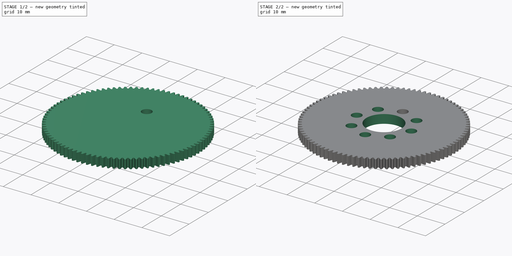
[diagram: build sequence overview — one tinted view per stage of 2, left to right]
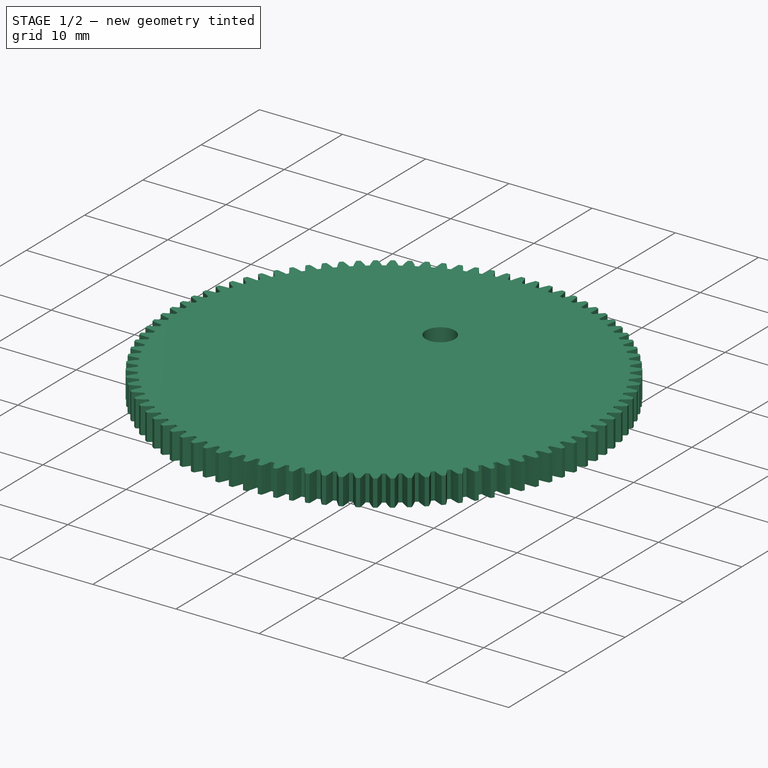
[diagram: stage 1 of 2 — iso view after this stage's code; geometry added in this stage tinted green]
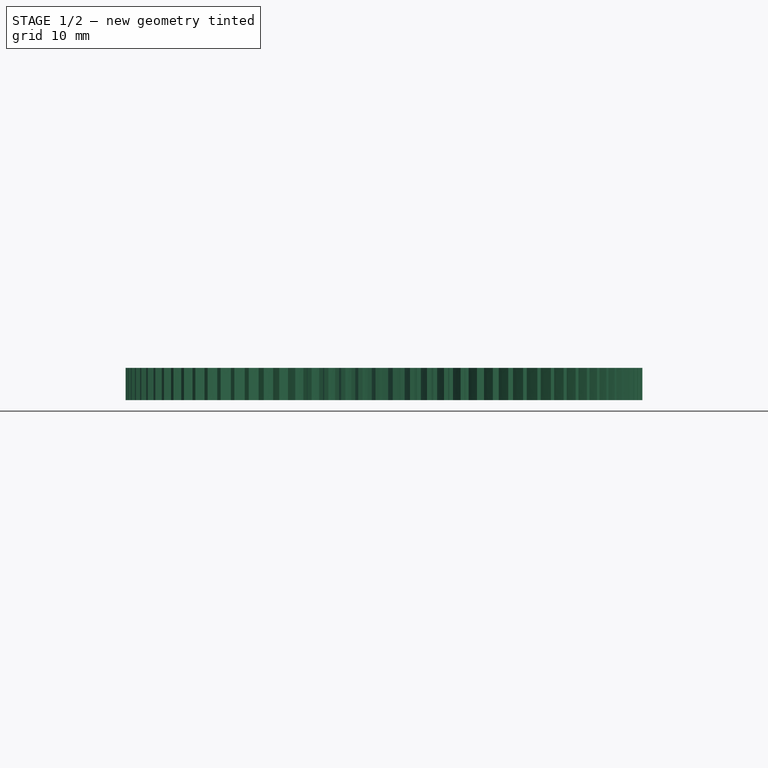
[diagram: stage 1 of 2 — front view after this stage's code; geometry added in this stage tinted green]
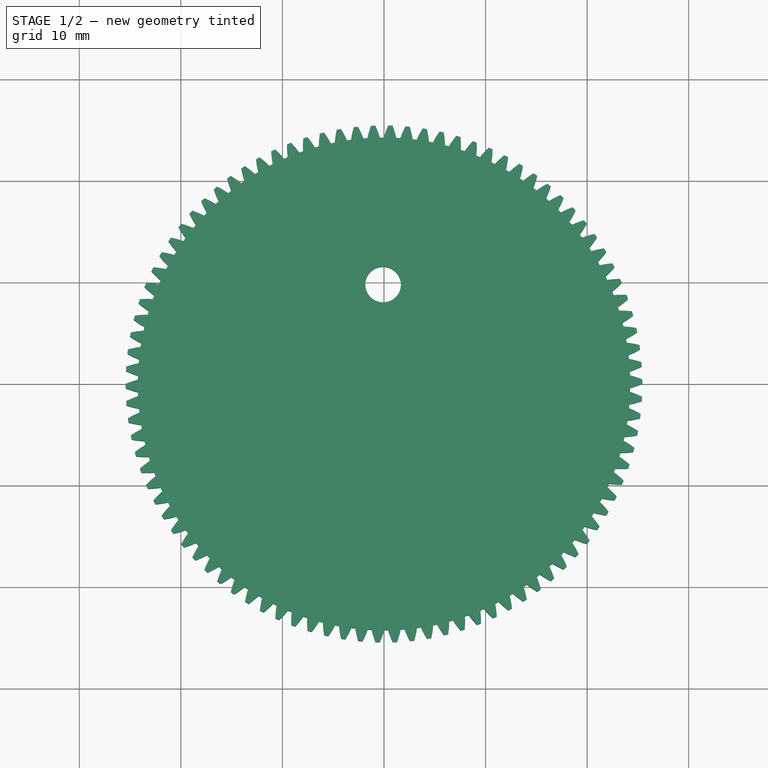
[diagram: stage 1 of 2 — top view after this stage's code; geometry added in this stage tinted green]
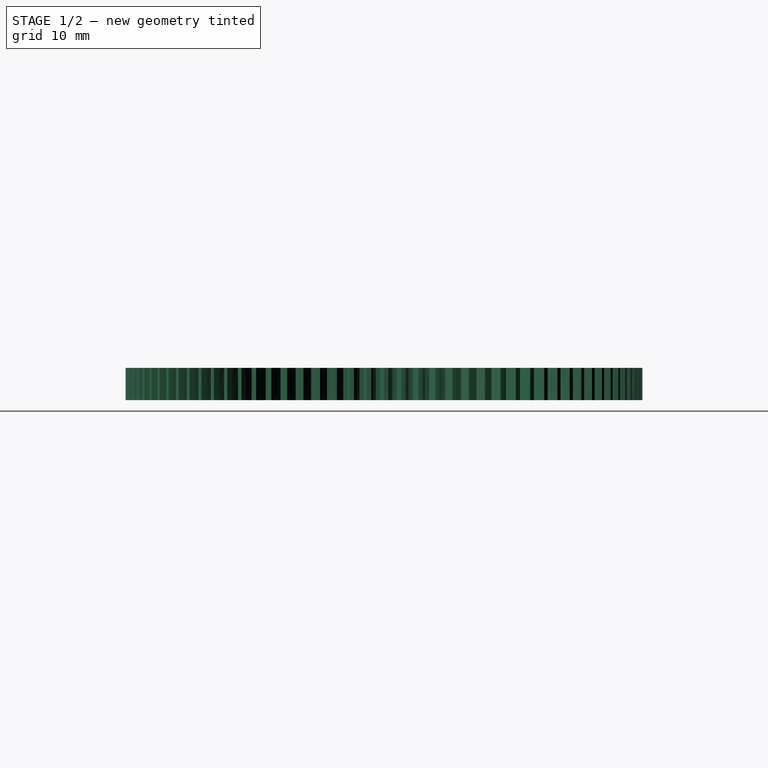
[diagram: stage 1 of 2 — right view after this stage's code; geometry added in this stage tinted green]
FCSTD DOCUMENT  (FreeCAD 0.16R6712 (Git))
Label: Acetal Main Gear
License: CreativeCommons Attribution-ShareAlike
LicenseURL: http://creativecommons.org/licenses/by-sa/4.0/
objects: Sketcher::SketchObject×2, PartDesign::Pocket×2, Part::FeaturePython×1, PartDesign::PolarPattern×1
note: 8 computed .brp shape members not serialized (recipe doc carries the construction recipe); baked Part::Feature solids carry a one-line shape summary decoded from their .brp

FEATURE [Part::FeaturePython] InvoluteGear  # WARN: FeaturePython — macro-defined, semantics opaque (R4)
  Placement = pos=(0,0,-7) rot=(0,0,1;0.008727rad)
  backlash = 0
  beta = 0
  clearance = 0.25
  height = 3.175
  module = 0.53
  numpoints = 6
  pressure_angle = 20
  shift = 0
  simple = false
  teeth = 94
  undercut = false
FEATURE [Sketcher::SketchObject] Sketch
  Placement = pos=(0,0,-3.825) rot=(0,0,1;0.008727rad)
  Support = -> InvoluteGear [Face378]
  sketch-geometry (2):
    g0: Circle [constr] CenterX=0 CenterY=0 CenterZ=0 NormalX=0 NormalY=0 NormalZ=1 Radius=9.779
    g1: Circle CenterX=0 CenterY=9.779 CenterZ=0 NormalX=0 NormalY=0 NormalZ=1 Radius=1.7526
  constraints (5):
    c: Coincident(g0,g-1)
    c: Radius(g0) = 9.779
    c: PointOnObject(g1,g0)
    c: PointOnObject(g1,g-2)
    c: Radius(g1) = 1.7526
FEATURE [PartDesign::Pocket] Pocket
  Length = 5
  Placement = pos=(0,0,-7) rot=(0,0,1;0.008727rad)
  Sketch = -> Sketch
  Type = 1
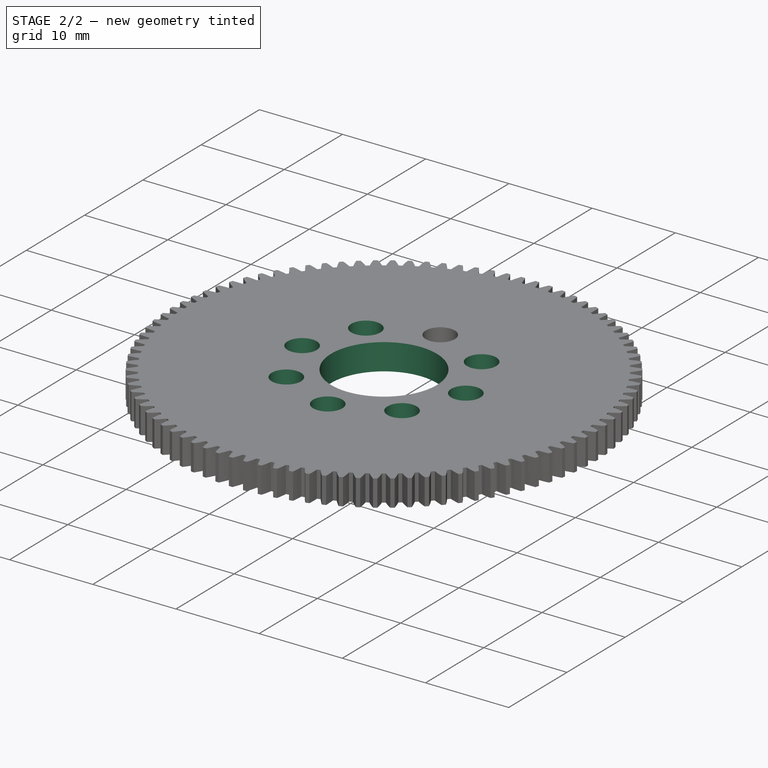
[diagram: stage 2 of 2 — iso view after this stage's code; geometry added in this stage tinted green]
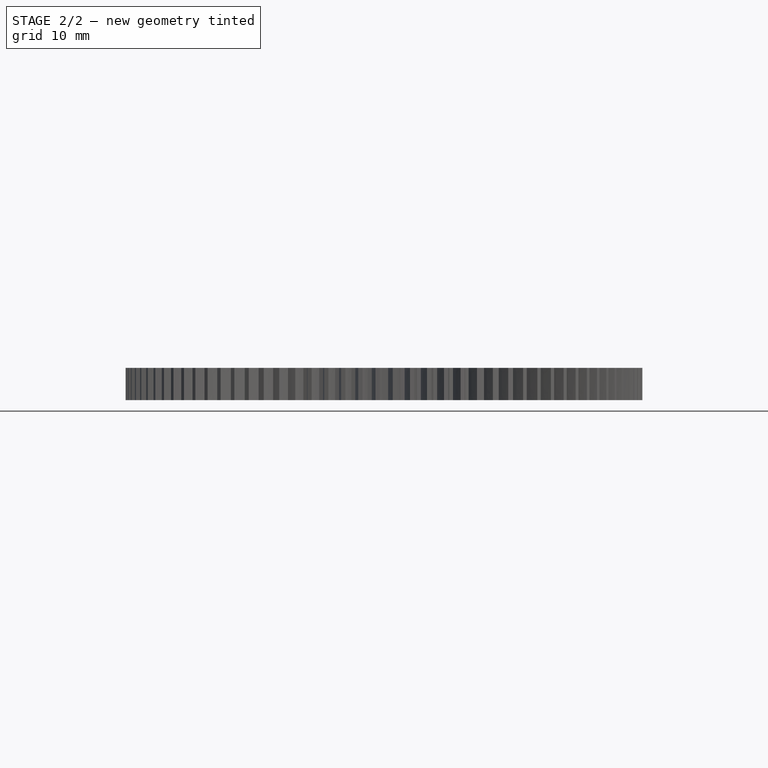
[diagram: stage 2 of 2 — front view after this stage's code; geometry added in this stage tinted green]
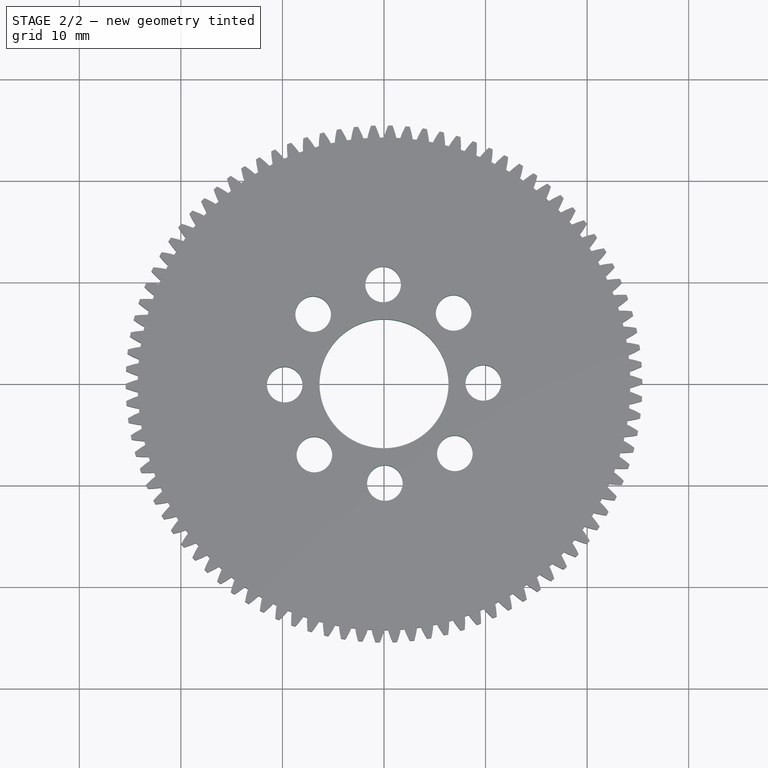
[diagram: stage 2 of 2 — top view after this stage's code; geometry added in this stage tinted green]
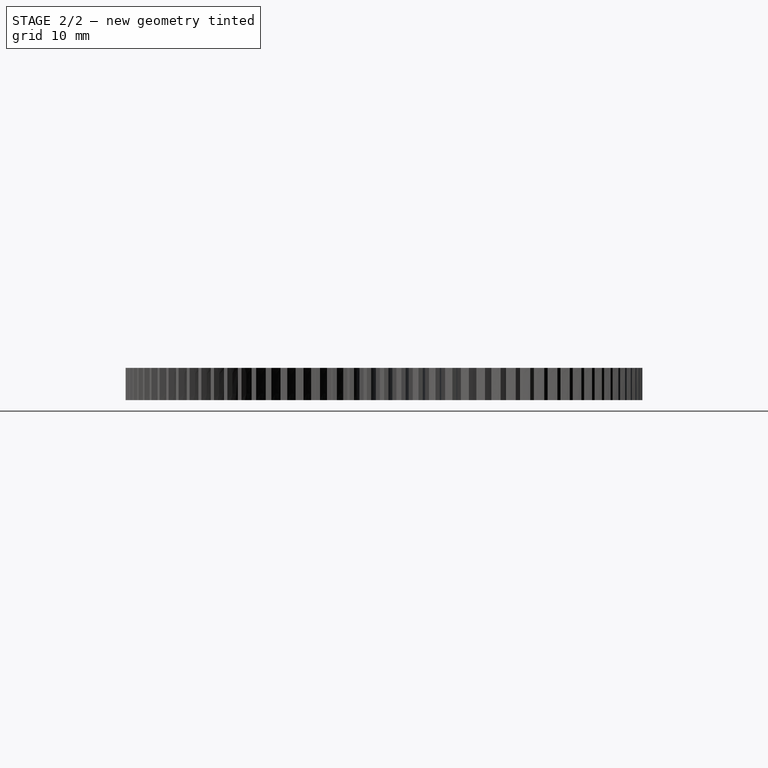
[diagram: stage 2 of 2 — right view after this stage's code; geometry added in this stage tinted green]
FEATURE [PartDesign::PolarPattern] PolarPattern
  Angle = 360
  Axis = -> Sketch [N_Axis]
  Occurrences = 8
  Originals = -> [Pocket]
  Placement = pos=(0,0,-7) rot=(0,0,1;0.008727rad)
FEATURE [Sketcher::SketchObject] Sketch001
  Placement = pos=(0,0,-3.825) rot=(0,0,1;0.008727rad)
  Support = -> PolarPattern [Face5]
  sketch-geometry (1):
    g0: Circle CenterX=0 CenterY=0 CenterZ=0 NormalX=0 NormalY=0 NormalZ=1 Radius=6.35
  constraints (2):
    c: Coincident(g0,g-1)
    c: Radius(g0) = 6.35
FEATURE [PartDesign::Pocket] Pocket001
  Length = 5
  Placement = pos=(0,0,-7) rot=(0,0,1;0.008727rad)
  Sketch = -> Sketch001
  Type = 0
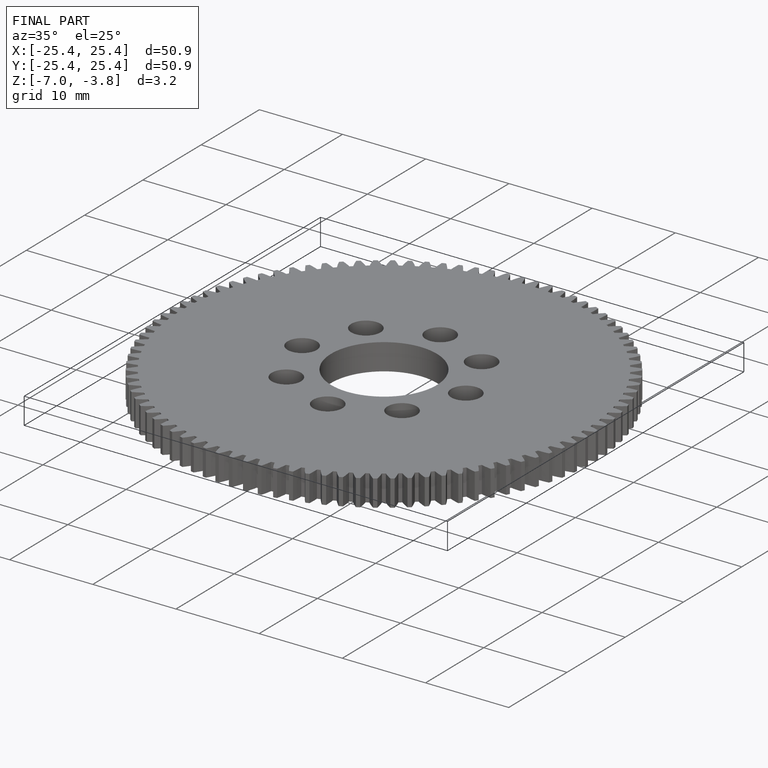
[diagram: finished part — iso view with bounding-box wireframe]
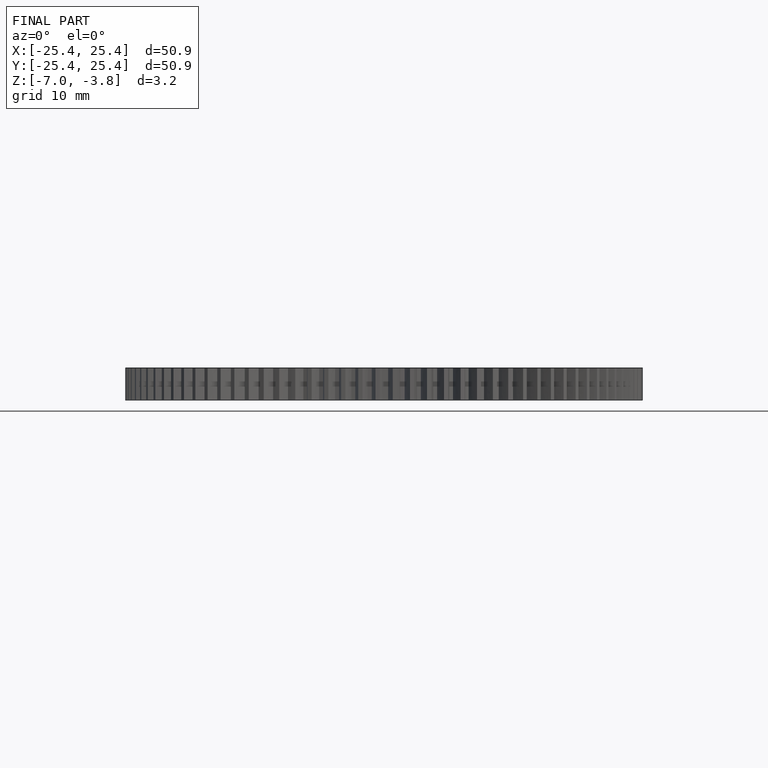
[diagram: finished part — front view with bounding-box wireframe]
